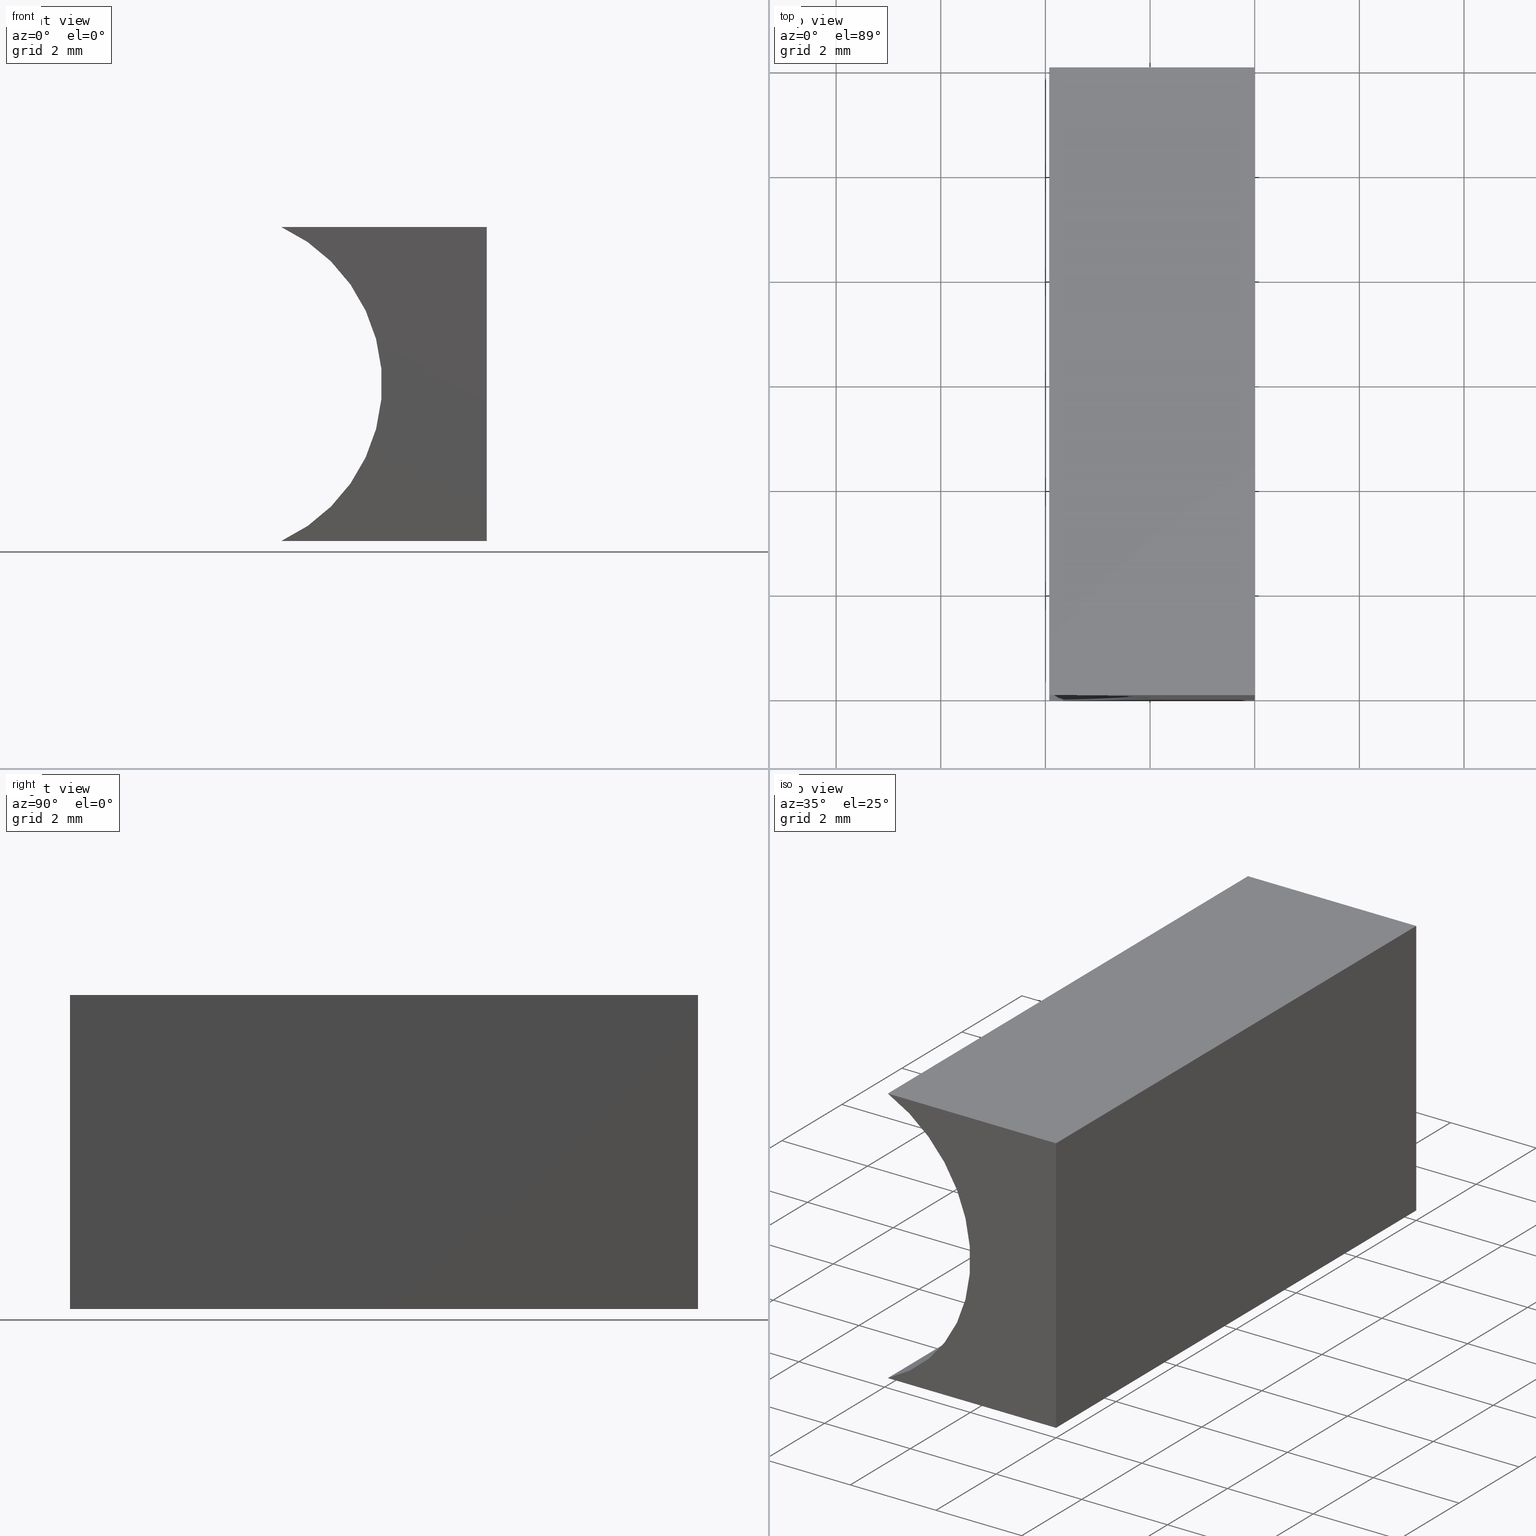
[diagram: canonical four-view strip — front | top / right | iso, engineering-drawing reading convention]
A machine part, canonical four-view strip (front | top / right | iso — engineering-drawing reading convention). The complete STEP part file that produces these views, byte-faithful:
ISO-10303-21;
HEADER;
FILE_DESCRIPTION (( 'STEP AP214' ),
    '1' );
FILE_NAME ('155337.STEP',
    '2019-06-27T07:37:41',
    ( 'user' ),
    ( '΢���й�' ),
    'SwSTEP 2.0',
    'SolidWorks 2016',
    '' );
FILE_SCHEMA (( 'AUTOMOTIVE_DESIGN' ));
ENDSEC;

DATA;
#1 = VERTEX_POINT ( 'NONE', #23 ) ;
#2 = CARTESIAN_POINT ( 'NONE',  ( -3.925227291513251800, 0.0000000000000000000, 5.999999999999998200 ) ) ;
#3 = ADVANCED_FACE ( 'NONE', ( #85 ), #22, .F. ) ;
#4 = ORIENTED_EDGE ( 'NONE', *, *, #148, .F. ) ;
#5 = PLANE ( 'NONE',  #64 ) ;
#6 = LINE ( 'NONE', #115, #55 ) ;
#7 = ADVANCED_FACE ( 'NONE', ( #138 ), #142, .T. ) ;
#8 = DIRECTION ( 'NONE',  ( -0.0000000000000000000, -1.000000000000000000, -0.0000000000000000000 ) ) ;
#9 = APPLICATION_PROTOCOL_DEFINITION ( 'draft international standard', 'automotive_design', 1998, #149 ) ;
#10 = DIRECTION ( 'NONE',  ( -0.0000000000000000000, -1.000000000000000000, -0.0000000000000000000 ) ) ;
#11 = FILL_AREA_STYLE_COLOUR ( '', #195 ) ;
#12 = ORIENTED_EDGE ( 'NONE', *, *, #136, .T. ) ;
#13 = DIRECTION ( 'NONE',  ( -0.0000000000000000000, -1.000000000000000000, -0.0000000000000000000 ) ) ;
#14 = CARTESIAN_POINT ( 'NONE',  ( -5.299999999999998900, 12.00000000000000000, 2.999999999999998200 ) ) ;
#15 = VERTEX_POINT ( 'NONE', #170 ) ;
#16 = ADVANCED_FACE ( 'NONE', ( #42 ), #137, .F. ) ;
#17 = DIRECTION ( 'NONE',  ( 0.0000000000000000000, -0.0000000000000000000, 1.000000000000000000 ) ) ;
#18 = AXIS2_PLACEMENT_3D ( 'NONE', #14, #144, #102 ) ;
#19 =( NAMED_UNIT ( * ) PLANE_ANGLE_UNIT ( ) SI_UNIT ( $, .RADIAN. ) );
#20 = VECTOR ( 'NONE', #8, 1000.000000000000000 ) ;
#21 = VERTEX_POINT ( 'NONE', #2 ) ;
#22 = PLANE ( 'NONE',  #60 ) ;
#23 = CARTESIAN_POINT ( 'NONE',  ( 0.0000000000000000000, 12.00000000000000000, 0.0000000000000000000 ) ) ;
#24 =( LENGTH_UNIT ( ) NAMED_UNIT ( * ) SI_UNIT ( .MILLI., .METRE. ) );
#25 = VECTOR ( 'NONE', #46, 1000.000000000000000 ) ;
#26 = ADVANCED_FACE ( 'NONE', ( #203 ), #79, .F. ) ;
#27 = PRODUCT_RELATED_PRODUCT_CATEGORY ( 'part', '', ( #68 ) ) ;
#28 = FILL_AREA_STYLE_COLOUR ( '', #145 ) ;
#29 = VERTEX_POINT ( 'NONE', #200 ) ;
#30 = EDGE_LOOP ( 'NONE', ( #70, #151, #48, #124 ) ) ;
#31 = DIRECTION ( 'NONE',  ( -0.0000000000000000000, -0.0000000000000000000, -1.000000000000000000 ) ) ;
#32 = DIRECTION ( 'NONE',  ( -0.0000000000000000000, -0.0000000000000000000, -1.000000000000000000 ) ) ;
#33 = EDGE_LOOP ( 'NONE', ( #62, #4, #103, #54 ) ) ;
#34 = CARTESIAN_POINT ( 'NONE',  ( -5.299999999999998900, 12.00000000000000000, 2.999999999999998200 ) ) ;
#35 = AXIS2_PLACEMENT_3D ( 'NONE', #162, #129, #97 ) ;
#36 = SURFACE_SIDE_STYLE ('',( #157 ) ) ;
#37 = DIRECTION ( 'NONE',  ( 1.000000000000000000, 0.0000000000000000000, 0.0000000000000000000 ) ) ;
#38 = CARTESIAN_POINT ( 'NONE',  ( 0.0000000000000000000, 12.00000000000000000, 6.000000000000000000 ) ) ;
#39 = AXIS2_PLACEMENT_3D ( 'NONE', #128, #84, #37 ) ;
#40 = VECTOR ( 'NONE', #194, 1000.000000000000000 ) ;
#41 = FILL_AREA_STYLE ('',( #28 ) ) ;
#42 = FACE_OUTER_BOUND ( 'NONE', #196, .T. ) ;
#43 = PLANE ( 'NONE',  #67 ) ;
#44 = DIRECTION ( 'NONE',  ( -0.0000000000000000000, -1.000000000000000000, -0.0000000000000000000 ) ) ;
#45 = PRODUCT_CONTEXT ( 'NONE', #120, 'mechanical' ) ;
#46 = DIRECTION ( 'NONE',  ( -1.000000000000000000, 0.0000000000000000000, 0.0000000000000000000 ) ) ;
#47 = EDGE_CURVE ( 'NONE', #130, #188, #122, .T. ) ;
#48 = ORIENTED_EDGE ( 'NONE', *, *, #164, .F. ) ;
#49 = PRESENTATION_LAYER_ASSIGNMENT (  '', '', ( #178 ) ) ;
#50 = PRODUCT_DEFINITION_CONTEXT ( 'detailed design', #149, 'design' ) ;
#51 = CARTESIAN_POINT ( 'NONE',  ( -3.925227291513245600, 12.00000000000000000, 4.336808689942017700E-016 ) ) ;
#52 =( NAMED_UNIT ( * ) PLANE_ANGLE_UNIT ( ) SI_UNIT ( $, .RADIAN. ) );
#53 = EDGE_CURVE ( 'NONE', #61, #21, #109, .T. ) ;
#54 = ORIENTED_EDGE ( 'NONE', *, *, #139, .T. ) ;
#55 = VECTOR ( 'NONE', #99, 1000.000000000000000 ) ;
#56 = ORIENTED_EDGE ( 'NONE', *, *, #172, .F. ) ;
#57 = EDGE_LOOP ( 'NONE', ( #12, #96, #56, #179 ) ) ;
#58 = CARTESIAN_POINT ( 'NONE',  ( -5.299999999999998900, 0.0000000000000000000, 2.999999999999998200 ) ) ;
#59 = ORIENTED_EDGE ( 'NONE', *, *, #136, .F. ) ;
#60 = AXIS2_PLACEMENT_3D ( 'NONE', #191, #104, #125 ) ;
#61 = VERTEX_POINT ( 'NONE', #202 ) ;
#62 = ORIENTED_EDGE ( 'NONE', *, *, #121, .T. ) ;
#63 = DIRECTION ( 'NONE',  ( -0.0000000000000000000, -1.000000000000000000, -0.0000000000000000000 ) ) ;
#64 = AXIS2_PLACEMENT_3D ( 'NONE', #76, #17, #176 ) ;
#65 = ORIENTED_EDGE ( 'NONE', *, *, #164, .T. ) ;
#66 =( LENGTH_UNIT ( ) NAMED_UNIT ( * ) SI_UNIT ( .MILLI., .METRE. ) );
#67 = AXIS2_PLACEMENT_3D ( 'NONE', #167, #75, #143 ) ;
#68 = PRODUCT ( '155337', '155337', '', ( #45 ) ) ;
#69 = LINE ( 'NONE', #175, #25 ) ;
#70 = ORIENTED_EDGE ( 'NONE', *, *, #73, .T. ) ;
#71 = VECTOR ( 'NONE', #32, 1000.000000000000000 ) ;
#72 = PRODUCT_DEFINITION ( 'δ֪', '', #183, #50 ) ;
#73 = EDGE_CURVE ( 'NONE', #188, #87, #117, .T. ) ;
#74 = FACE_OUTER_BOUND ( 'NONE', #33, .T. ) ;
#75 = DIRECTION ( 'NONE',  ( 4.419421722985211700E-016, 0.0000000000000000000, -1.000000000000000000 ) ) ;
#76 = CARTESIAN_POINT ( 'NONE',  ( 0.0000000000000000000, 12.00000000000000000, 0.0000000000000000000 ) ) ;
#77 = AXIS2_PLACEMENT_3D ( 'NONE', #58, #63, #134 ) ;
#78 = CARTESIAN_POINT ( 'NONE',  ( 0.0000000000000000000, 12.00000000000000000, 0.0000000000000000000 ) ) ;
#79 = PLANE ( 'NONE',  #35 ) ;
#80 =( GEOMETRIC_REPRESENTATION_CONTEXT ( 3 ) GLOBAL_UNCERTAINTY_ASSIGNED_CONTEXT ( ( #150 ) ) GLOBAL_UNIT_ASSIGNED_CONTEXT ( ( #66, #19, #116 ) ) REPRESENTATION_CONTEXT ( 'NONE', 'WORKASPACE' ) );
#81 = CARTESIAN_POINT ( 'NONE',  ( 0.0000000000000000000, 12.00000000000000000, 6.000000000000000000 ) ) ;
#82 = ORIENTED_EDGE ( 'NONE', *, *, #131, .F. ) ;
#83 = PRESENTATION_STYLE_ASSIGNMENT (( #126 ) ) ;
#84 = DIRECTION ( 'NONE',  ( 0.0000000000000000000, 0.0000000000000000000, 1.000000000000000000 ) ) ;
#85 = FACE_OUTER_BOUND ( 'NONE', #30, .T. ) ;
#86 = SURFACE_STYLE_USAGE ( .BOTH. , #36 ) ;
#87 = VERTEX_POINT ( 'NONE', #147 ) ;
#88 =( GEOMETRIC_REPRESENTATION_CONTEXT ( 3 ) GLOBAL_UNCERTAINTY_ASSIGNED_CONTEXT ( ( #189 ) ) GLOBAL_UNIT_ASSIGNED_CONTEXT ( ( #24, #106, #160 ) ) REPRESENTATION_CONTEXT ( 'NONE', 'WORKASPACE' ) );
#89 = EDGE_LOOP ( 'NONE', ( #184, #163, #59, #153 ) ) ;
#90 = CLOSED_SHELL ( 'NONE', ( #146, #16, #141, #3, #7, #26 ) ) ;
#91 = DIRECTION ( 'NONE',  ( 0.0000000000000000000, 0.0000000000000000000, 1.000000000000000000 ) ) ;
#92 =( NAMED_UNIT ( * ) SI_UNIT ( $, .STERADIAN. ) SOLID_ANGLE_UNIT ( ) );
#93 = LINE ( 'NONE', #133, #20 ) ;
#94 = EDGE_LOOP ( 'NONE', ( #105, #135, #155, #65 ) ) ;
#95 = DIRECTION ( 'NONE',  ( -0.0000000000000000000, -1.000000000000000000, -0.0000000000000000000 ) ) ;
#96 = ORIENTED_EDGE ( 'NONE', *, *, #47, .F. ) ;
#97 = DIRECTION ( 'NONE',  ( 0.0000000000000000000, -0.0000000000000000000, 1.000000000000000000 ) ) ;
#98 = CARTESIAN_POINT ( 'NONE',  ( -5.299999999999998900, 12.00000000000000000, 2.999999999999998200 ) ) ;
#99 = DIRECTION ( 'NONE',  ( 1.000000000000000000, -0.0000000000000000000, 4.419421722985211700E-016 ) ) ;
#100 = CARTESIAN_POINT ( 'NONE',  ( -3.925227291513251800, 12.00000000000000000, 5.999999999999998200 ) ) ;
#101 = AXIS2_PLACEMENT_3D ( 'NONE', #34, #156, #201 ) ;
#102 = DIRECTION ( 'NONE',  ( 0.0000000000000000000, 0.0000000000000000000, -1.000000000000000000 ) ) ;
#103 = ORIENTED_EDGE ( 'NONE', *, *, #182, .F. ) ;
#104 = DIRECTION ( 'NONE',  ( -1.000000000000000000, 0.0000000000000000000, 0.0000000000000000000 ) ) ;
#105 = ORIENTED_EDGE ( 'NONE', *, *, #182, .T. ) ;
#106 =( NAMED_UNIT ( * ) PLANE_ANGLE_UNIT ( ) SI_UNIT ( $, .RADIAN. ) );
#107 = SHAPE_DEFINITION_REPRESENTATION ( #140, #165 ) ;
#108 = CARTESIAN_POINT ( 'NONE',  ( 0.0000000000000000000, 12.00000000000000000, 6.000000000000000000 ) ) ;
#109 = LINE ( 'NONE', #100, #173 ) ;
#110 = AXIS2_PLACEMENT_3D ( 'NONE', #98, #95, #91 ) ;
#111 = CARTESIAN_POINT ( 'NONE',  ( 0.0000000000000000000, 12.00000000000000000, 0.0000000000000000000 ) ) ;
#112 = VECTOR ( 'NONE', #119, 1000.000000000000000 ) ;
#113 = ORIENTED_EDGE ( 'NONE', *, *, #186, .T. ) ;
#114 = CIRCLE ( 'NONE', #77, 3.299999999999998000 ) ;
#115 = CARTESIAN_POINT ( 'NONE',  ( 0.0000000000000000000, 0.0000000000000000000, 6.000000000000000000 ) ) ;
#116 =( NAMED_UNIT ( * ) SI_UNIT ( $, .STERADIAN. ) SOLID_ANGLE_UNIT ( ) );
#117 = LINE ( 'NONE', #190, #185 ) ;
#118 = VECTOR ( 'NONE', #10, 1000.000000000000000 ) ;
#119 = DIRECTION ( 'NONE',  ( 1.000000000000000000, -0.0000000000000000000, 4.419421722985211700E-016 ) ) ;
#120 = APPLICATION_CONTEXT ( 'automotive_design' ) ;
#121 = EDGE_CURVE ( 'NONE', #87, #29, #69, .T. ) ;
#122 = LINE ( 'NONE', #38, #177 ) ;
#123 = LINE ( 'NONE', #51, #118 ) ;
#124 = ORIENTED_EDGE ( 'NONE', *, *, #47, .T. ) ;
#125 = DIRECTION ( 'NONE',  ( 0.0000000000000000000, 0.0000000000000000000, 1.000000000000000000 ) ) ;
#126 = SURFACE_STYLE_USAGE ( .BOTH. , #187 ) ;
#127 = LINE ( 'NONE', #81, #112 ) ;
#128 = CARTESIAN_POINT ( 'NONE',  ( 0.0000000000000000000, 0.0000000000000000000, 0.0000000000000000000 ) ) ;
#129 = DIRECTION ( 'NONE',  ( 0.0000000000000000000, 1.000000000000000000, 0.0000000000000000000 ) ) ;
#130 = VERTEX_POINT ( 'NONE', #108 ) ;
#131 = EDGE_CURVE ( 'NONE', #15, #61, #152, .T. ) ;
#132 = LINE ( 'NONE', #111, #71 ) ;
#133 = CARTESIAN_POINT ( 'NONE',  ( 0.0000000000000000000, 12.00000000000000000, 0.0000000000000000000 ) ) ;
#134 = DIRECTION ( 'NONE',  ( 0.0000000000000000000, 0.0000000000000000000, 1.000000000000000000 ) ) ;
#135 = ORIENTED_EDGE ( 'NONE', *, *, #131, .T. ) ;
#136 = EDGE_CURVE ( 'NONE', #21, #188, #6, .T. ) ;
#137 = CYLINDRICAL_SURFACE ( 'NONE', #18, 3.299999999999998500 ) ;
#138 = FACE_OUTER_BOUND ( 'NONE', #94, .T. ) ;
#139 = EDGE_CURVE ( 'NONE', #1, #87, #93, .T. ) ;
#140 = PRODUCT_DEFINITION_SHAPE ( 'NONE', 'NONE',  #72 ) ;
#141 = ADVANCED_FACE ( 'NONE', ( #193 ), #43, .F. ) ;
#142 = PLANE ( 'NONE',  #101 ) ;
#143 = DIRECTION ( 'NONE',  ( -1.000000000000000000, 0.0000000000000000000, -4.419421722985211700E-016 ) ) ;
#144 = DIRECTION ( 'NONE',  ( -0.0000000000000000000, -1.000000000000000000, -0.0000000000000000000 ) ) ;
#145 = COLOUR_RGB ( '',1.000000000000000000, 1.000000000000000000, 1.000000000000000000 ) ;
#146 = ADVANCED_FACE ( 'NONE', ( #74 ), #5, .F. ) ;
#147 = CARTESIAN_POINT ( 'NONE',  ( 0.0000000000000000000, 0.0000000000000000000, 0.0000000000000000000 ) ) ;
#148 = EDGE_CURVE ( 'NONE', #15, #29, #123, .T. ) ;
#149 = APPLICATION_CONTEXT ( 'automotive_design' ) ;
#150 = UNCERTAINTY_MEASURE_WITH_UNIT (LENGTH_MEASURE( 1.000000000000000100E-005 ), #66, 'distance_accuracy_value', 'NONE');
#151 = ORIENTED_EDGE ( 'NONE', *, *, #139, .F. ) ;
#152 = CIRCLE ( 'NONE', #110, 3.299999999999998000 ) ;
#153 = ORIENTED_EDGE ( 'NONE', *, *, #186, .F. ) ;
#154 = PRESENTATION_STYLE_ASSIGNMENT (( #86 ) ) ;
#155 = ORIENTED_EDGE ( 'NONE', *, *, #172, .T. ) ;
#156 = DIRECTION ( 'NONE',  ( 0.0000000000000000000, 1.000000000000000000, 0.0000000000000000000 ) ) ;
#157 = SURFACE_STYLE_FILL_AREA ( #41 ) ;
#158 = ORIENTED_EDGE ( 'NONE', *, *, #148, .T. ) ;
#159 = MECHANICAL_DESIGN_GEOMETRIC_PRESENTATION_REPRESENTATION (  '', ( #161 ), #169 ) ;
#160 =( NAMED_UNIT ( * ) SI_UNIT ( $, .STERADIAN. ) SOLID_ANGLE_UNIT ( ) );
#161 = STYLED_ITEM ( 'NONE', ( #154 ), #165 ) ;
#162 = CARTESIAN_POINT ( 'NONE',  ( -5.299999999999998900, 0.0000000000000000000, 2.999999999999998200 ) ) ;
#163 = ORIENTED_EDGE ( 'NONE', *, *, #73, .F. ) ;
#164 = EDGE_CURVE ( 'NONE', #130, #1, #132, .T. ) ;
#165 = ADVANCED_BREP_SHAPE_REPRESENTATION ( '155337', ( #171, #39 ), #88 ) ;
#166 = APPLICATION_PROTOCOL_DEFINITION ( 'draft international standard', 'automotive_design', 1998, #120 ) ;
#167 = CARTESIAN_POINT ( 'NONE',  ( 0.0000000000000000000, 12.00000000000000000, 6.000000000000000000 ) ) ;
#168 =( LENGTH_UNIT ( ) NAMED_UNIT ( * ) SI_UNIT ( .MILLI., .METRE. ) );
#169 =( GEOMETRIC_REPRESENTATION_CONTEXT ( 3 ) GLOBAL_UNCERTAINTY_ASSIGNED_CONTEXT ( ( #198 ) ) GLOBAL_UNIT_ASSIGNED_CONTEXT ( ( #168, #52, #92 ) ) REPRESENTATION_CONTEXT ( 'NONE', 'WORKASPACE' ) );
#170 = CARTESIAN_POINT ( 'NONE',  ( -3.925227291513245600, 12.00000000000000000, 4.336808689942017700E-016 ) ) ;
#171 = MANIFOLD_SOLID_BREP ( '͹̨-����1', #90 ) ;
#172 = EDGE_CURVE ( 'NONE', #61, #130, #127, .T. ) ;
#173 = VECTOR ( 'NONE', #44, 1000.000000000000000 ) ;
#174 = ORIENTED_EDGE ( 'NONE', *, *, #53, .F. ) ;
#175 = CARTESIAN_POINT ( 'NONE',  ( 0.0000000000000000000, 0.0000000000000000000, 0.0000000000000000000 ) ) ;
#176 = DIRECTION ( 'NONE',  ( 1.000000000000000000, 0.0000000000000000000, -0.0000000000000000000 ) ) ;
#177 = VECTOR ( 'NONE', #13, 1000.000000000000000 ) ;
#178 = STYLED_ITEM ( 'NONE', ( #83 ), #171 ) ;
#179 = ORIENTED_EDGE ( 'NONE', *, *, #53, .T. ) ;
#180 = CARTESIAN_POINT ( 'NONE',  ( 0.0000000000000000000, 0.0000000000000000000, 6.000000000000000000 ) ) ;
#181 = LINE ( 'NONE', #78, #40 ) ;
#182 = EDGE_CURVE ( 'NONE', #1, #15, #181, .T. ) ;
#183 = PRODUCT_DEFINITION_FORMATION_WITH_SPECIFIED_SOURCE ( '�κ�', '', #68, .NOT_KNOWN. ) ;
#184 = ORIENTED_EDGE ( 'NONE', *, *, #121, .F. ) ;
#185 = VECTOR ( 'NONE', #31, 1000.000000000000000 ) ;
#186 = EDGE_CURVE ( 'NONE', #29, #21, #114, .T. ) ;
#187 = SURFACE_SIDE_STYLE ('',( #199 ) ) ;
#188 = VERTEX_POINT ( 'NONE', #180 ) ;
#189 = UNCERTAINTY_MEASURE_WITH_UNIT (LENGTH_MEASURE( 1.000000000000000100E-005 ), #24, 'distance_accuracy_value', 'NONE');
#190 = CARTESIAN_POINT ( 'NONE',  ( 0.0000000000000000000, 0.0000000000000000000, 0.0000000000000000000 ) ) ;
#191 = CARTESIAN_POINT ( 'NONE',  ( 0.0000000000000000000, 12.00000000000000000, 0.0000000000000000000 ) ) ;
#192 = FILL_AREA_STYLE ('',( #11 ) ) ;
#193 = FACE_OUTER_BOUND ( 'NONE', #57, .T. ) ;
#194 = DIRECTION ( 'NONE',  ( -1.000000000000000000, 0.0000000000000000000, 0.0000000000000000000 ) ) ;
#195 = COLOUR_RGB ( '',1.000000000000000000, 1.000000000000000000, 1.000000000000000000 ) ;
#196 = EDGE_LOOP ( 'NONE', ( #113, #174, #82, #158 ) ) ;
#197 = PRESENTATION_LAYER_ASSIGNMENT (  '', '', ( #161 ) ) ;
#198 = UNCERTAINTY_MEASURE_WITH_UNIT (LENGTH_MEASURE( 1.000000000000000100E-005 ), #168, 'distance_accuracy_value', 'NONE');
#199 = SURFACE_STYLE_FILL_AREA ( #192 ) ;
#200 = CARTESIAN_POINT ( 'NONE',  ( -3.925227291513245600, 0.0000000000000000000, 4.336808689942017700E-016 ) ) ;
#201 = DIRECTION ( 'NONE',  ( 0.0000000000000000000, -0.0000000000000000000, 1.000000000000000000 ) ) ;
#202 = CARTESIAN_POINT ( 'NONE',  ( -3.925227291513251800, 12.00000000000000000, 5.999999999999998200 ) ) ;
#203 = FACE_OUTER_BOUND ( 'NONE', #89, .T. ) ;
#204 = MECHANICAL_DESIGN_GEOMETRIC_PRESENTATION_REPRESENTATION (  '', ( #178 ), #80 ) ;
ENDSEC;
END-ISO-10303-21;
